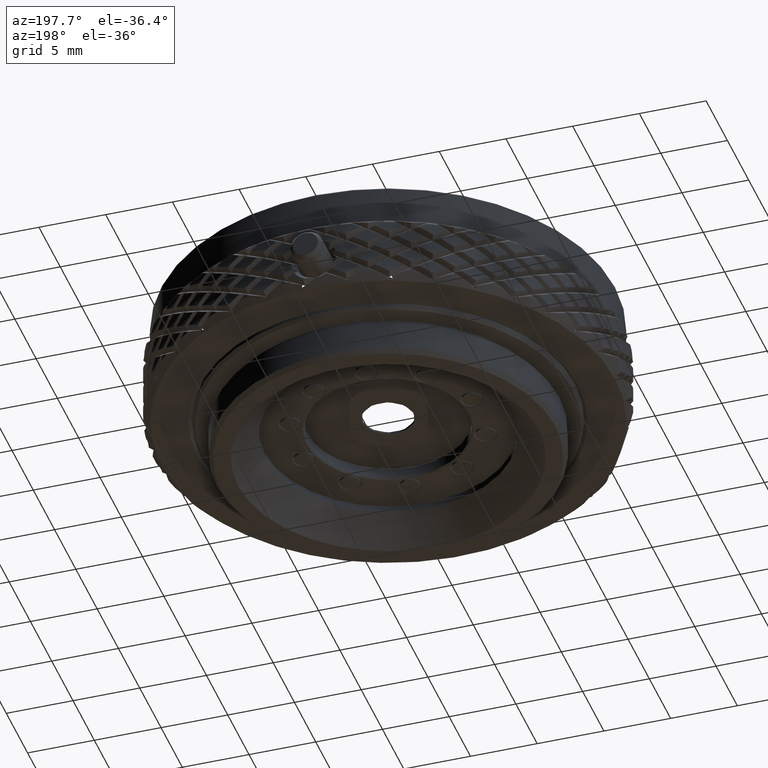
[diagram: clean part render]
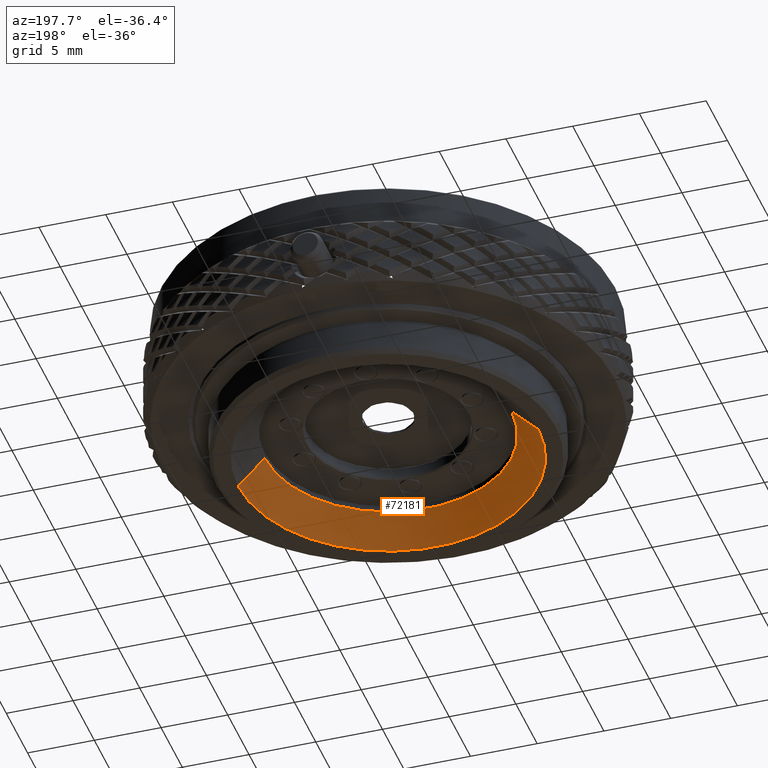
[diagram: same view with one face highlighted and labeled with its STEP entity id]
A machine part, auxiliary view. The second image highlights one B-rep face of the part: STEP entity #72181.
In plain terms, the highlighted conical surface has half-angle 45 deg.
Its self-contained STEP definition (entity closure, byte-faithful):
#8320 = EDGE_CURVE ( 'NONE', #36338, #61137, #42830, .T. ) ;
#10561 = DIRECTION ( 'NONE',  ( 1.000000000000000000, 0.000000000000000000, 0.000000000000000000 ) ) ;
#15569 = DIRECTION ( 'NONE',  ( -0.000000000000000000, -0.000000000000000000, -1.000000000000000000 ) ) ;
#19727 = DIRECTION ( 'NONE',  ( -0.7071067811865456854, 0.000000000000000000, -0.7071067811865493491 ) ) ;
#20186 = CONICAL_SURFACE ( 'NONE', #69474, 11.24999999999998401, 0.7853981633974457255 ) ;
#21402 = EDGE_CURVE ( 'NONE', #36338, #62213, #55578, .T. ) ;
#22580 = VECTOR ( 'NONE', #19727, 1000.000000000000000 ) ;
#26920 = LINE ( 'NONE', #52276, #22580 ) ;
#28204 = VECTOR ( 'NONE', #34881, 1000.000000000000000 ) ;
#29169 = FACE_OUTER_BOUND ( 'NONE', #36004, .T. ) ;
#30659 = EDGE_CURVE ( 'NONE', #61137, #56413, #26920, .T. ) ;
#33028 = ORIENTED_EDGE ( 'NONE', *, *, #21402, .T. ) ;
#34881 = DIRECTION ( 'NONE',  ( 0.7071067811865456854, 8.659560562354910671E-17, -0.7071067811865493491 ) ) ;
#36004 = EDGE_LOOP ( 'NONE', ( #47815, #33028, #37469, #84047 ) ) ;
#36338 = VERTEX_POINT ( 'NONE', #38958 ) ;
#37469 = ORIENTED_EDGE ( 'NONE', *, *, #41260, .F. ) ;
#38958 = CARTESIAN_POINT ( 'NONE',  ( 9.250000000000000000, 0.000000000000000000, 1.999999999999994893 ) ) ;
#39733 = CARTESIAN_POINT ( 'NONE',  ( -11.24999999999998401, 0.000000000000000000, 0.000000000000000000 ) ) ;
#41260 = EDGE_CURVE ( 'NONE', #56413, #62213, #54808, .T. ) ;
#41799 = DIRECTION ( 'NONE',  ( 0.000000000000000000, 0.000000000000000000, 1.000000000000000000 ) ) ;
#42830 = CIRCLE ( 'NONE', #71758, 9.250000000000000000 ) ;
#43008 = CARTESIAN_POINT ( 'NONE',  ( 11.24999999999998401, 1.377727649040770417E-15, 0.000000000000000000 ) ) ;
#47815 = ORIENTED_EDGE ( 'NONE', *, *, #8320, .F. ) ;
#47908 = AXIS2_PLACEMENT_3D ( 'NONE', #48313, #41799, #48714 ) ;
#48313 = CARTESIAN_POINT ( 'NONE',  ( 0.000000000000000000, 0.000000000000000000, 0.000000000000000000 ) ) ;
#48714 = DIRECTION ( 'NONE',  ( 1.000000000000000000, 0.000000000000000000, 0.000000000000000000 ) ) ;
#49949 = CARTESIAN_POINT ( 'NONE',  ( 0.000000000000000000, 0.000000000000000000, 1.999999999999994893 ) ) ;
#52276 = CARTESIAN_POINT ( 'NONE',  ( -11.24999999999998401, 0.000000000000000000, 0.000000000000000000 ) ) ;
#54808 = CIRCLE ( 'NONE', #47908, 11.24999999999998401 ) ;
#55578 = LINE ( 'NONE', #43008, #28204 ) ;
#55863 = CARTESIAN_POINT ( 'NONE',  ( 0.000000000000000000, 0.000000000000000000, 0.000000000000000000 ) ) ;
#56270 = DIRECTION ( 'NONE',  ( -1.000000000000000000, 0.000000000000000000, 0.000000000000000000 ) ) ;
#56413 = VERTEX_POINT ( 'NONE', #39733 ) ;
#58182 = CARTESIAN_POINT ( 'NONE',  ( 11.24999999999998401, 1.377727649040770417E-15, 0.000000000000000000 ) ) ;
#61137 = VERTEX_POINT ( 'NONE', #72178 ) ;
#62213 = VERTEX_POINT ( 'NONE', #58182 ) ;
#69474 = AXIS2_PLACEMENT_3D ( 'NONE', #55863, #15569, #56270 ) ;
#71758 = AXIS2_PLACEMENT_3D ( 'NONE', #49949, #82268, #10561 ) ;
#72178 = CARTESIAN_POINT ( 'NONE',  ( -9.250000000000000000, 1.132798289211301501E-15, 1.999999999999994893 ) ) ;
#72181 = ADVANCED_FACE ( 'NONE', ( #29169 ), #20186, .F. ) ;
#82268 = DIRECTION ( 'NONE',  ( -0.000000000000000000, -0.000000000000000000, -1.000000000000000000 ) ) ;
#84047 = ORIENTED_EDGE ( 'NONE', *, *, #30659, .F. ) ;